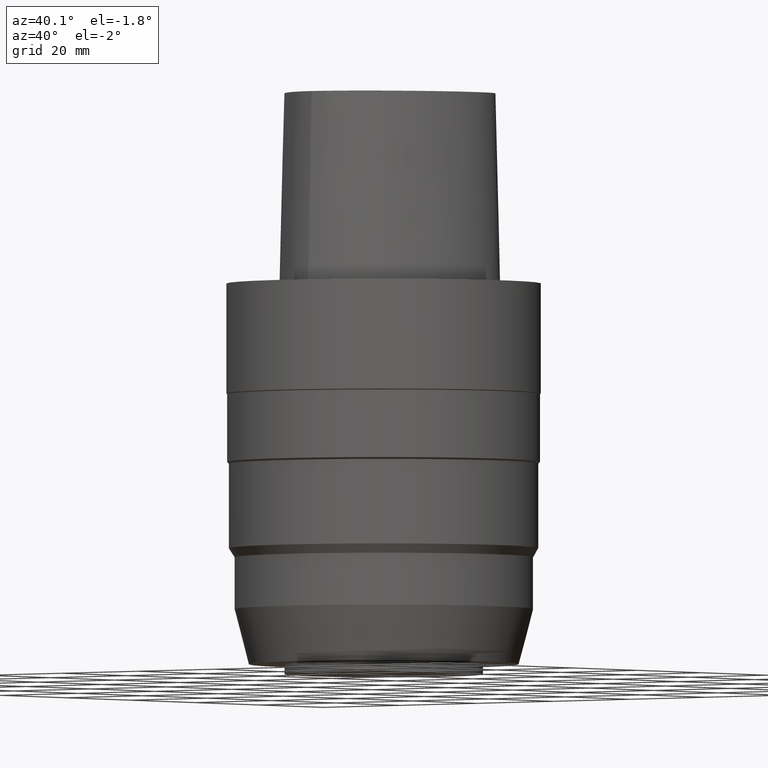
[diagram: clean part render]
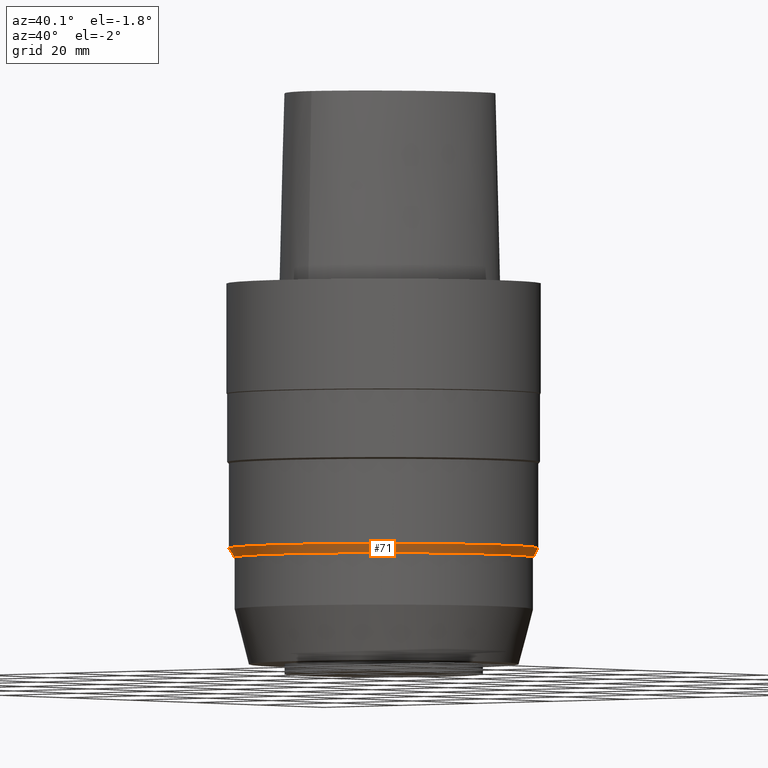
[diagram: same view with one face highlighted and labeled with its STEP entity id]
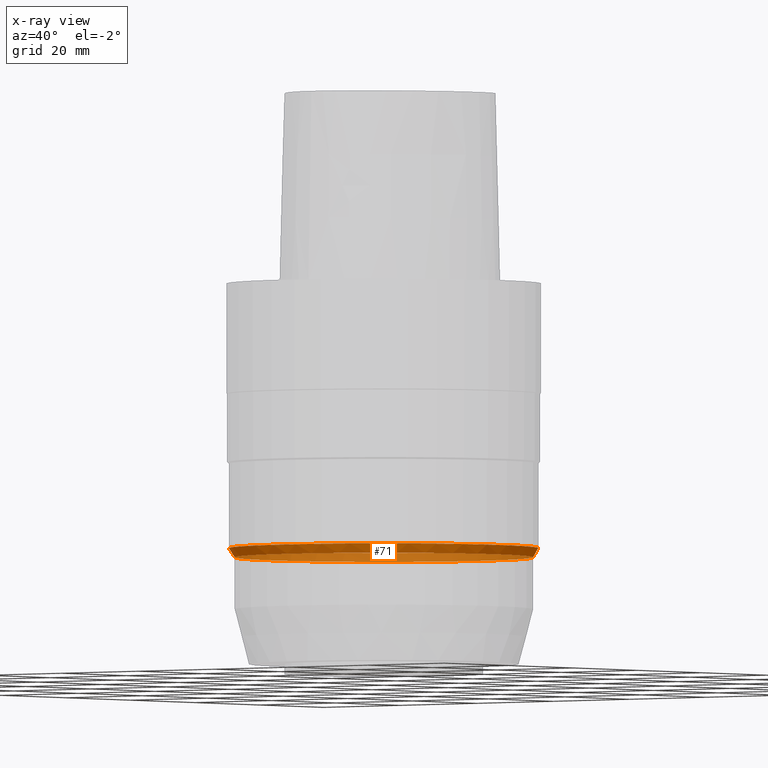
[diagram: x-ray of the same camera — body ghosted, the highlighted face saturated]
A machine part, auxiliary view. The second image highlights one B-rep face of the part: STEP entity #71.
The next image is the same camera in x-ray: the body ghosted, the highlighted face saturated — about 43% of this face is hidden behind the body in this view.
In plain terms, the highlighted conical surface has half-angle 30 deg.
Its self-contained STEP definition (entity closure, byte-faithful):
#71=ADVANCED_FACE('Unnamed[1]',(#182,#183),#184,.T.);
#102=EDGE_CURVE('Unnamed[1]',#229,#229,#230,.T.);
#118=EDGE_CURVE('Unnamed[1]',#255,#255,#256,.T.);
#182=FACE_BOUND('',#397,.T.);
#183=FACE_BOUND('',#398,.T.);
#184=CONICAL_SURFACE('',#399,30.475,0.523598775596922);
#229=VERTEX_POINT('',#555);
#230=CIRCLE('',#556,29.9499999999999);
#255=VERTEX_POINT('',#587);
#256=CIRCLE('',#588,31.0);
#397=EDGE_LOOP('',(#690));
#398=EDGE_LOOP('',(#691));
#399=AXIS2_PLACEMENT_3D('',#692,#693,#694);
#555=CARTESIAN_POINT('',(3.35553222966382E-015,29.9499999999999,-54.8000000000012));
#556=AXIS2_PLACEMENT_3D('',#732,#733,#734);
#587=CARTESIAN_POINT('',(3.24417182959735E-015,31.0,-52.981346652048));
#588=AXIS2_PLACEMENT_3D('',#764,#765,#766);
#690=ORIENTED_EDGE('',*,*,#102,.F.);
#691=ORIENTED_EDGE('',*,*,#118,.T.);
#692=CARTESIAN_POINT('',(3.29985202963059E-015,6.59970405926117E-015,-53.8906733260246));
#693=DIRECTION('',(-6.12323399573677E-017,-1.22464679914735E-016,1.0));
#694=DIRECTION('',(-1.23259516440783E-032,1.0,1.22464679914735E-016));
#732=CARTESIAN_POINT('',(3.35553222966382E-015,6.71106445932765E-015,-54.8000000000012));
#733=DIRECTION('',(6.12323399573677E-017,1.22464679914735E-016,-1.0));
#734=DIRECTION('',(-1.23259516440783E-032,1.0,1.22464679914735E-016));
#764=CARTESIAN_POINT('',(3.24417182959735E-015,6.48834365919469E-015,-52.981346652048));
#765=DIRECTION('',(6.12323399573676E-017,1.22464679914735E-016,-1.0));
#766=DIRECTION('',(-1.23259516440783E-032,1.0,1.22464679914735E-016));